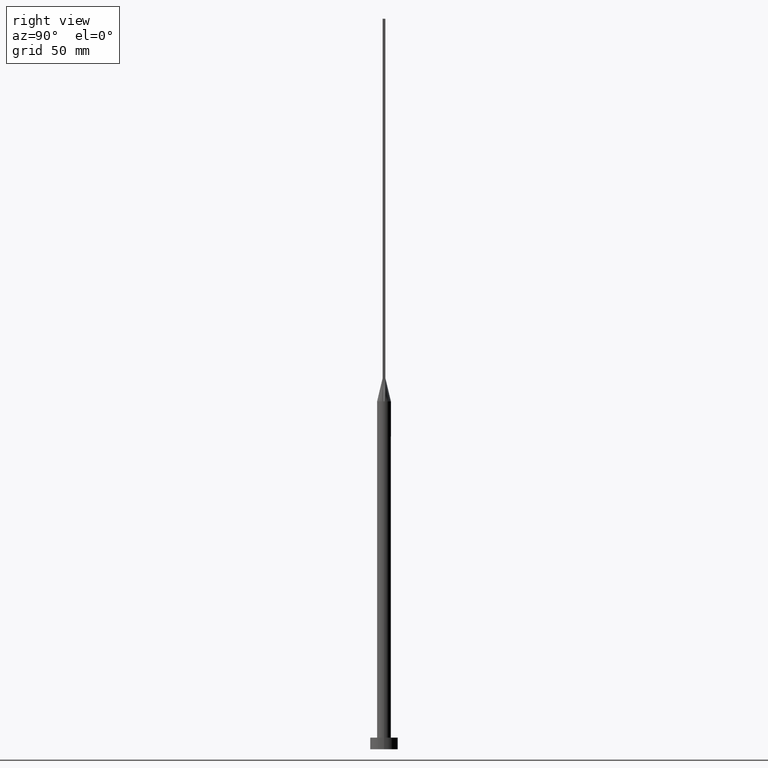
[diagram: clean part render]
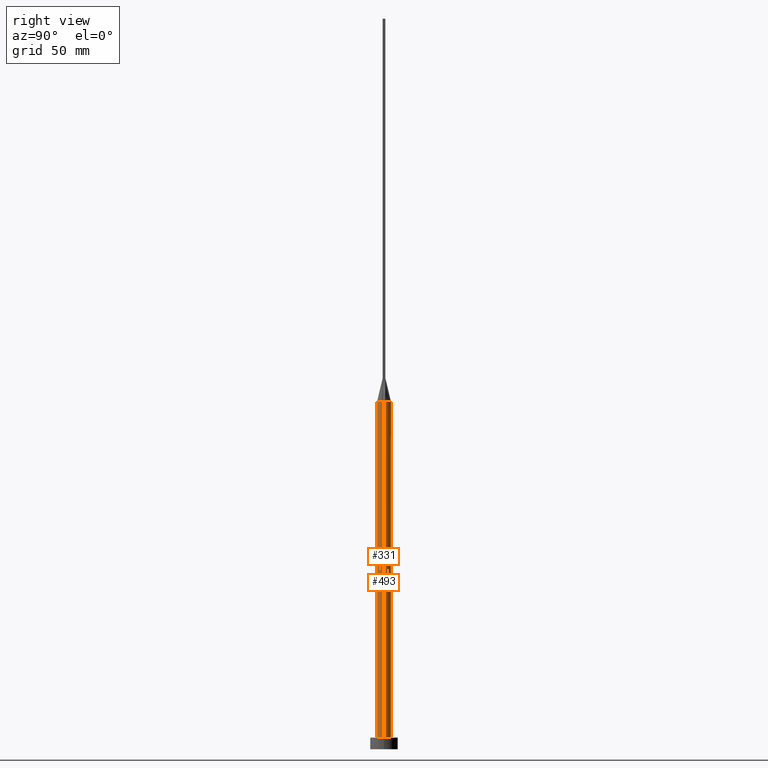
[diagram: same view with one multi-face feature highlighted, each face labeled with its STEP entity id]
A machine part, right view. The highlighted faces form ONE feature: a constant-radius fillet chain: 2 tangent blend faces with common blend radius 3 mm. The faces share edges in the B-rep.
Their STEP definitions:
[1] entity #493 (Cylinder):
#4 = VERTEX_POINT ( 'NONE', #199 ) ;
#10 = CARTESIAN_POINT ( 'NONE',  ( 0.8041209001220689379, 2.916015559847871863, 150.0000000000000000 ) ) ;
#14 = AXIS2_PLACEMENT_3D ( 'NONE', #104, #158, #342 ) ;
#19 = CARTESIAN_POINT ( 'NONE',  ( -2.792624347712117761, 1.135030881087315313, 150.0000000000000000 ) ) ;
#21 = CARTESIAN_POINT ( 'NONE',  ( -0.4026715616377299356, 2.999999999999999556, 150.0000000000000000 ) ) ;
#24 = CARTESIAN_POINT ( 'NONE',  ( -3.000000000000000444, 0.000000000000000000, 150.0000000000000000 ) ) ;
#26 = DIRECTION ( 'NONE',  ( -0.000000000000000000, -0.000000000000000000, -1.000000000000000000 ) ) ;
#56 = EDGE_CURVE ( 'NONE', #367, #364, #213, .T. ) ;
#62 = CIRCLE ( 'NONE', #325, 3.000000000000000444 ) ;
#64 = CARTESIAN_POINT ( 'NONE',  ( -2.518011668798964653, 1.657305971825549840, 150.0000000000000284 ) ) ;
#65 = FACE_OUTER_BOUND ( 'NONE', #526, .T. ) ;
#68 = LINE ( 'NONE', #24, #238 ) ;
#71 = AXIS2_PLACEMENT_3D ( 'NONE', #378, #200, #432 ) ;
#97 = CARTESIAN_POINT ( 'NONE',  ( 2.878980386154874616, 0.8781411751610636029, 150.0000000000000284 ) ) ;
#104 = CARTESIAN_POINT ( 'NONE',  ( 0.000000000000000000, 0.000000000000000000, 5.000000000000000000 ) ) ;
#109 = CARTESIAN_POINT ( 'NONE',  ( -2.931320679040856803, 0.6395611071856786012, 150.0000000000000000 ) ) ;
#128 = CARTESIAN_POINT ( 'NONE',  ( -2.931320679040856803, 0.6395611071856786012, 150.0000000000000000 ) ) ;
#141 = CARTESIAN_POINT ( 'NONE',  ( 0.4026715616377294915, 2.999999999999999556, 150.0000000000000000 ) ) ;
#143 = CARTESIAN_POINT ( 'NONE',  ( 2.328745122427009040, 1.922758842442225946, 149.9999999999999716 ) ) ;
#158 = DIRECTION ( 'NONE',  ( 0.000000000000000000, 0.000000000000000000, 1.000000000000000000 ) ) ;
#172 = ORIENTED_EDGE ( 'NONE', *, *, #56, .F. ) ;
#198 = DIRECTION ( 'NONE',  ( 1.000000000000000000, 0.000000000000000000, 0.000000000000000000 ) ) ;
#199 = CARTESIAN_POINT ( 'NONE',  ( 3.000000000000000444, 3.673940397442060361E-16, 5.000000000000000000 ) ) ;
#200 = DIRECTION ( 'NONE',  ( -0.000000000000000000, -0.000000000000000000, -1.000000000000000000 ) ) ;
#201 = CARTESIAN_POINT ( 'NONE',  ( -2.328745122427008152, 1.922758842442225280, 150.0000000000000284 ) ) ;
#211 = ORIENTED_EDGE ( 'NONE', *, *, #236, .F. ) ;
#213 = B_SPLINE_CURVE_WITH_KNOTS ( 'NONE', 3,
 ( #465, #97, #558, #424, #143, #514, #426, #10, #141, #21, #376, #371, #550, #201, #64, #19, #326, #109 ),
 .UNSPECIFIED., .F., .F.,
 ( 4, 2, 2, 2, 2, 2, 2, 2, 4 ),
 ( 0.000000000000000000, 0.1250000000000000000, 0.2500000000000000000, 0.3750000000000000000, 0.5000000000000000000, 0.6250000000000000000, 0.7500000000000000000, 0.8750000000000000000, 1.000000000000000000 ),
 .UNSPECIFIED. ) ;
#217 = DIRECTION ( 'NONE',  ( 0.000000000000000000, 0.000000000000000000, 1.000000000000000000 ) ) ;
#224 = DIRECTION ( 'NONE',  ( -0.000000000000000000, -0.000000000000000000, -1.000000000000000000 ) ) ;
#231 = VERTEX_POINT ( 'NONE', #264 ) ;
#236 = EDGE_CURVE ( 'NONE', #578, #231, #68, .T. ) ;
#238 = VECTOR ( 'NONE', #26, 1000.000000000000000 ) ;
#263 = CIRCLE ( 'NONE', #475, 3.000000000000000444 ) ;
#264 = CARTESIAN_POINT ( 'NONE',  ( -3.000000000000000444, 0.000000000000000000, 5.000000000000000000 ) ) ;
#277 = ORIENTED_EDGE ( 'NONE', *, *, #453, .T. ) ;
#281 = VECTOR ( 'NONE', #224, 1000.000000000000000 ) ;
#290 = CYLINDRICAL_SURFACE ( 'NONE', #71, 3.000000000000000444 ) ;
#311 = CARTESIAN_POINT ( 'NONE',  ( 0.000000000000000000, 0.000000000000000000, 150.0000000000000000 ) ) ;
#312 = CARTESIAN_POINT ( 'NONE',  ( 2.931303352270923757, 0.6395574164693091923, 150.0000000000000000 ) ) ;
#325 = AXIS2_PLACEMENT_3D ( 'NONE', #422, #466, #198 ) ;
#326 = CARTESIAN_POINT ( 'NONE',  ( -2.878980386154874616, 0.8781411751610629368, 150.0000000000000000 ) ) ;
#342 = DIRECTION ( 'NONE',  ( 1.000000000000000000, 0.000000000000000000, 0.000000000000000000 ) ) ;
#344 = CARTESIAN_POINT ( 'NONE',  ( -2.999603793582328315, -7.025298958605770567E-16, 150.0000000000000000 ) ) ;
#364 = VERTEX_POINT ( 'NONE', #128 ) ;
#367 = VERTEX_POINT ( 'NONE', #312 ) ;
#371 = CARTESIAN_POINT ( 'NONE',  ( -1.517787371616671654, 2.616501225271827380, 150.0000000000000000 ) ) ;
#376 = CARTESIAN_POINT ( 'NONE',  ( -0.8041209001220690489, 2.916015559847871419, 150.0000000000000000 ) ) ;
#378 = CARTESIAN_POINT ( 'NONE',  ( 0.000000000000000000, 0.000000000000000000, 150.0000000000000000 ) ) ;
#390 = CARTESIAN_POINT ( 'NONE',  ( 2.999603793582328759, 7.166726372340513095E-16, 150.0000000000000000 ) ) ;
#422 = CARTESIAN_POINT ( 'NONE',  ( 0.000000000000000000, 0.000000000000000000, 150.0000000000000000 ) ) ;
#424 = CARTESIAN_POINT ( 'NONE',  ( 2.518011668798964209, 1.657305971825549840, 150.0000000000000284 ) ) ;
#426 = CARTESIAN_POINT ( 'NONE',  ( 1.517787371616672099, 2.616501225271827824, 150.0000000000000000 ) ) ;
#432 = DIRECTION ( 'NONE',  ( -1.000000000000000000, 0.000000000000000000, 0.000000000000000000 ) ) ;
#438 = CARTESIAN_POINT ( 'NONE',  ( 3.000000000000000444, 3.673940397442060361E-16, 150.0000000000000000 ) ) ;
#444 = LINE ( 'NONE', #438, #281 ) ;
#453 = EDGE_CURVE ( 'NONE', #4, #231, #523, .T. ) ;
#454 = ORIENTED_EDGE ( 'NONE', *, *, #562, .T. ) ;
#465 = CARTESIAN_POINT ( 'NONE',  ( 2.931303352270923757, 0.6395574164693091923, 150.0000000000000000 ) ) ;
#466 = DIRECTION ( 'NONE',  ( 0.000000000000000000, 0.000000000000000000, 1.000000000000000000 ) ) ;
#467 = EDGE_CURVE ( 'NONE', #538, #367, #62, .T. ) ;
#475 = AXIS2_PLACEMENT_3D ( 'NONE', #311, #217, #566 ) ;
#493 = ADVANCED_FACE ( 'NONE', ( #65 ), #290, .T. ) ;
#514 = CARTESIAN_POINT ( 'NONE',  ( 1.829136458871247761, 2.402980488111650992, 149.9999999999999716 ) ) ;
#523 = CIRCLE ( 'NONE', #14, 3.000000000000000444 ) ;
#526 = EDGE_LOOP ( 'NONE', ( #573, #454, #277, #211, #546, #172 ) ) ;
#538 = VERTEX_POINT ( 'NONE', #390 ) ;
#546 = ORIENTED_EDGE ( 'NONE', *, *, #547, .F. ) ;
#547 = EDGE_CURVE ( 'NONE', #364, #578, #263, .T. ) ;
#550 = CARTESIAN_POINT ( 'NONE',  ( -1.829136458871247761, 2.402980488111649660, 149.9999999999999716 ) ) ;
#558 = CARTESIAN_POINT ( 'NONE',  ( 2.792624347712116872, 1.135030881087315979, 150.0000000000000284 ) ) ;
#562 = EDGE_CURVE ( 'NONE', #538, #4, #444, .T. ) ;
#566 = DIRECTION ( 'NONE',  ( 1.000000000000000000, 0.000000000000000000, 0.000000000000000000 ) ) ;
#573 = ORIENTED_EDGE ( 'NONE', *, *, #467, .F. ) ;
#578 = VERTEX_POINT ( 'NONE', #344 ) ;
[2] entity #331 (Cylinder):
#3 = VERTEX_POINT ( 'NONE', #55 ) ;
#4 = VERTEX_POINT ( 'NONE', #199 ) ;
#20 = DIRECTION ( 'NONE',  ( 0.000000000000000000, 0.000000000000000000, 1.000000000000000000 ) ) ;
#24 = CARTESIAN_POINT ( 'NONE',  ( -3.000000000000000444, 0.000000000000000000, 150.0000000000000000 ) ) ;
#26 = DIRECTION ( 'NONE',  ( -0.000000000000000000, -0.000000000000000000, -1.000000000000000000 ) ) ;
#38 = ORIENTED_EDGE ( 'NONE', *, *, #508, .F. ) ;
#55 = CARTESIAN_POINT ( 'NONE',  ( -2.931315536094174057, -0.6395601373676296220, 150.0000000000000000 ) ) ;
#63 = AXIS2_PLACEMENT_3D ( 'NONE', #270, #464, #405 ) ;
#68 = LINE ( 'NONE', #24, #238 ) ;
#80 = CARTESIAN_POINT ( 'NONE',  ( 0.000000000000000000, 0.000000000000000000, 150.0000000000000000 ) ) ;
#83 = CARTESIAN_POINT ( 'NONE',  ( 0.000000000000000000, 0.000000000000000000, 150.0000000000000000 ) ) ;
#103 = DIRECTION ( 'NONE',  ( 1.000000000000000000, 0.000000000000000000, 0.000000000000000000 ) ) ;
#107 = EDGE_CURVE ( 'NONE', #231, #4, #431, .T. ) ;
#133 = ORIENTED_EDGE ( 'NONE', *, *, #107, .T. ) ;
#134 = AXIS2_PLACEMENT_3D ( 'NONE', #425, #20, #383 ) ;
#148 = EDGE_CURVE ( 'NONE', #313, #538, #275, .T. ) ;
#181 = ORIENTED_EDGE ( 'NONE', *, *, #562, .F. ) ;
#188 = FACE_OUTER_BOUND ( 'NONE', #208, .T. ) ;
#191 = CARTESIAN_POINT ( 'NONE',  ( 0.000000000000000000, 0.000000000000000000, 5.000000000000000000 ) ) ;
#199 = CARTESIAN_POINT ( 'NONE',  ( 3.000000000000000444, 3.673940397442060361E-16, 5.000000000000000000 ) ) ;
#208 = EDGE_LOOP ( 'NONE', ( #181, #449, #38, #412, #348, #133 ) ) ;
#224 = DIRECTION ( 'NONE',  ( -0.000000000000000000, -0.000000000000000000, -1.000000000000000000 ) ) ;
#231 = VERTEX_POINT ( 'NONE', #264 ) ;
#236 = EDGE_CURVE ( 'NONE', #578, #231, #68, .T. ) ;
#238 = VECTOR ( 'NONE', #26, 1000.000000000000000 ) ;
#244 = CYLINDRICAL_SURFACE ( 'NONE', #63, 3.000000000000000444 ) ;
#264 = CARTESIAN_POINT ( 'NONE',  ( -3.000000000000000444, 0.000000000000000000, 5.000000000000000000 ) ) ;
#265 = AXIS2_PLACEMENT_3D ( 'NONE', #191, #507, #103 ) ;
#270 = CARTESIAN_POINT ( 'NONE',  ( 0.000000000000000000, 0.000000000000000000, 150.0000000000000000 ) ) ;
#275 = CIRCLE ( 'NONE', #328, 3.000000000000000444 ) ;
#281 = VECTOR ( 'NONE', #224, 1000.000000000000000 ) ;
#296 = CARTESIAN_POINT ( 'NONE',  ( 2.931332910560268790, -0.6395638358681950963, 150.0000000000000000 ) ) ;
#313 = VERTEX_POINT ( 'NONE', #296 ) ;
#328 = AXIS2_PLACEMENT_3D ( 'NONE', #80, #484, #428 ) ;
#331 = ADVANCED_FACE ( 'NONE', ( #188 ), #244, .T. ) ;
#338 = EDGE_CURVE ( 'NONE', #578, #3, #377, .T. ) ;
#344 = CARTESIAN_POINT ( 'NONE',  ( -2.999603793582328315, -7.025298958605770567E-16, 150.0000000000000000 ) ) ;
#348 = ORIENTED_EDGE ( 'NONE', *, *, #236, .T. ) ;
#370 = DIRECTION ( 'NONE',  ( 0.000000000000000000, 0.000000000000000000, 1.000000000000000000 ) ) ;
#377 = CIRCLE ( 'NONE', #458, 3.000000000000000444 ) ;
#383 = DIRECTION ( 'NONE',  ( 1.000000000000000000, 0.000000000000000000, 0.000000000000000000 ) ) ;
#390 = CARTESIAN_POINT ( 'NONE',  ( 2.999603793582328759, 7.166726372340513095E-16, 150.0000000000000000 ) ) ;
#405 = DIRECTION ( 'NONE',  ( -1.000000000000000000, 0.000000000000000000, 0.000000000000000000 ) ) ;
#412 = ORIENTED_EDGE ( 'NONE', *, *, #338, .F. ) ;
#425 = CARTESIAN_POINT ( 'NONE',  ( 0.000000000000000000, 0.000000000000000000, 150.0000000000000000 ) ) ;
#428 = DIRECTION ( 'NONE',  ( 1.000000000000000000, -8.881784197001252323E-15, 0.000000000000000000 ) ) ;
#431 = CIRCLE ( 'NONE', #265, 3.000000000000000444 ) ;
#438 = CARTESIAN_POINT ( 'NONE',  ( 3.000000000000000444, 3.673940397442060361E-16, 150.0000000000000000 ) ) ;
#444 = LINE ( 'NONE', #438, #281 ) ;
#449 = ORIENTED_EDGE ( 'NONE', *, *, #148, .F. ) ;
#458 = AXIS2_PLACEMENT_3D ( 'NONE', #83, #370, #504 ) ;
#464 = DIRECTION ( 'NONE',  ( -0.000000000000000000, -0.000000000000000000, -1.000000000000000000 ) ) ;
#484 = DIRECTION ( 'NONE',  ( 0.000000000000000000, 0.000000000000000000, 1.000000000000000000 ) ) ;
#504 = DIRECTION ( 'NONE',  ( 1.000000000000000000, 0.000000000000000000, 0.000000000000000000 ) ) ;
#507 = DIRECTION ( 'NONE',  ( 0.000000000000000000, 0.000000000000000000, 1.000000000000000000 ) ) ;
#508 = EDGE_CURVE ( 'NONE', #3, #313, #535, .T. ) ;
#535 = CIRCLE ( 'NONE', #134, 3.000000000000000444 ) ;
#538 = VERTEX_POINT ( 'NONE', #390 ) ;
#562 = EDGE_CURVE ( 'NONE', #538, #4, #444, .T. ) ;
#578 = VERTEX_POINT ( 'NONE', #344 ) ;